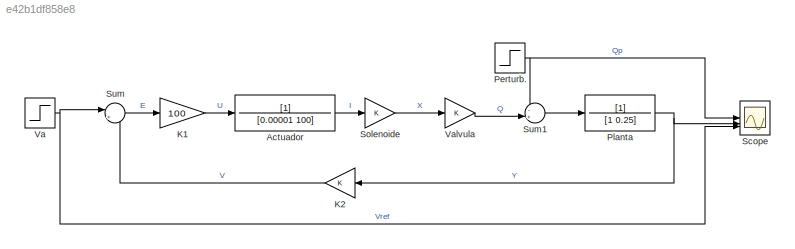
MODEL slx_e42b1df858e8
KIND model
CONFIG AbsTol = auto
CONFIG EnableMultiTasking = off
CONFIG FixedStep = auto
CONFIG MaxStep = auto
CONFIG MinStep = auto
CONFIG RelTol = 1e-3
CONFIG SampleTimeConstraint = Unconstrained
CONFIG SolverName = VariableStepAuto
CONFIG StartTime = 0.0
CONFIG StopTime = 20.0
BLOCK [TransferFcn] Actuador
  Denominator = [0.00001 100]
BLOCK [Gain] K1
  Gain = 100
BLOCK [Gain] K2
BLOCK [Step] Perturb.
  After = 2
  SampleTime = 0
  Time = 10
BLOCK [TransferFcn] Planta
  Denominator = [1 0.25]
BLOCK [Scope] Scope
  Floating = off
  NumInputPorts = 3
  ScopeSpecificationString = Simulink.scopes.TimeScopeBlockCfg('CurrentConfiguration', extmgr.ConfigurationSet(extmgr.Configuration('Core','General UI',true),extmgr.Configuration('Core','Source UI',true),extmgr.Configuration('Sources','WiredSimulink',true),extmgr.Configuration('Visuals','Time Domain',true,'SerializedDisplays',{struct('MinYLimReal','-1.25','MaxYLimReal','11.25','YLabelReal','','MinYLimMag','0.00000','MaxYLimMa...<+1435ch>
BLOCK [Gain] Solenoide
BLOCK [Sum] Sum
  Inputs = |+-
BLOCK [Sum] Sum1
  Inputs = -+|
BLOCK [Step] Va
  After = 10
  SampleTime = 0
BLOCK [Gain] Valvula
LINE Actuador:1 -> Solenoide:1
LINE K1:1 -> Actuador:1
LINE K2:1 -> Sum:2
NET Perturb.:1 -> Scope:1, Sum1:1
NET Planta:1 -> K2:1, Scope:2
LINE Solenoide:1 -> Valvula:1
LINE Sum1:1 -> Planta:1
LINE Sum:1 -> K1:1
NET Va:1 -> Scope:3, Sum:1
LINE Valvula:1 -> Sum1:2
note: NET lines group one-source signal fan-out (src -> all destinations, sorted); 1:1 wires keep LINE
